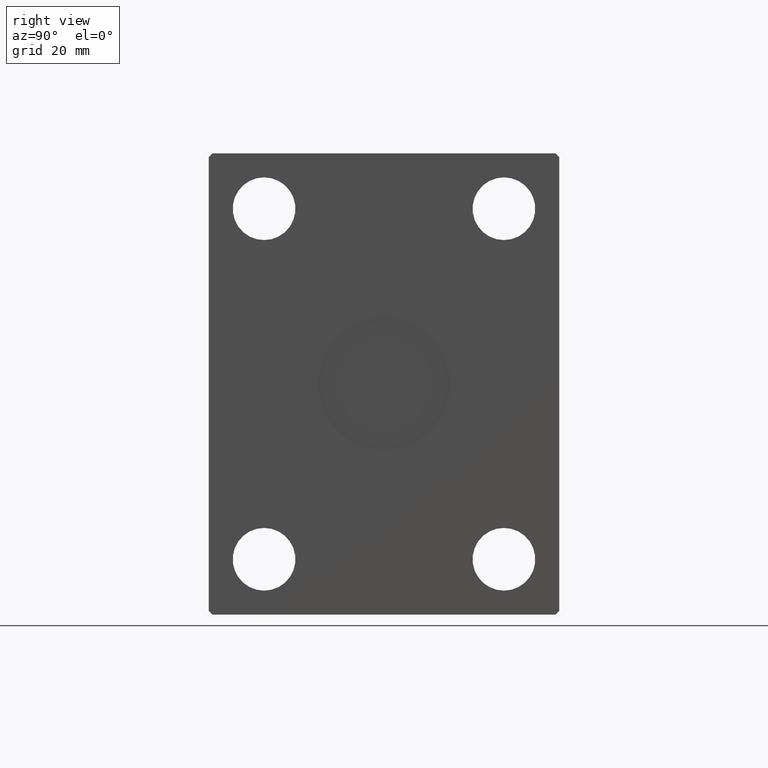
[diagram: clean part render]
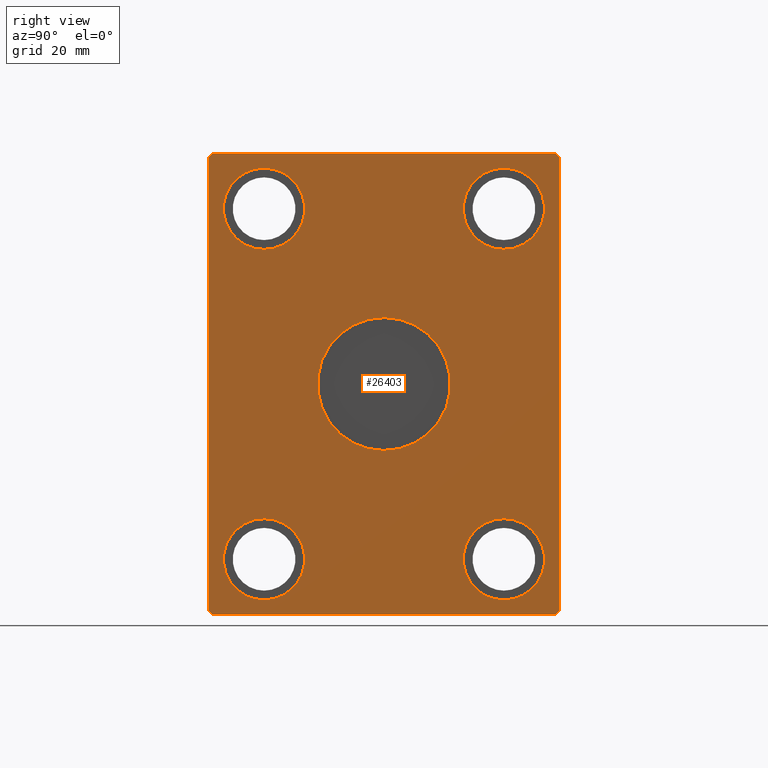
[diagram: same view with one face highlighted and labeled with its STEP entity id]
A machine part, right view. The second image highlights one B-rep face of the part: STEP entity #26403.
In plain terms, the highlighted planar face has unit normal (1, 0, 0).
Its self-contained STEP definition (entity closure, byte-faithful):
#306 = ORIENTED_EDGE ( 'NONE', *, *, #28182, .T. ) ;
#836 = VERTEX_POINT ( 'NONE', #36995 ) ;
#1132 = ORIENTED_EDGE ( 'NONE', *, *, #11264, .F. ) ;
#1316 = VERTEX_POINT ( 'NONE', #36210 ) ;
#1847 = CARTESIAN_POINT ( 'NONE',  ( 121.0000000000000000, 2.204364238465235428E-15, 18.00000000000000000 ) ) ;
#1907 = ORIENTED_EDGE ( 'NONE', *, *, #36774, .T. ) ;
#2006 = CARTESIAN_POINT ( 'NONE',  ( 121.0000000000000000, -32.50000000000000000, 47.50000000000000000 ) ) ;
#2541 = DIRECTION ( 'NONE',  ( 0.000000000000000000, -1.128275431529630729E-16, 1.000000000000000000 ) ) ;
#2580 = DIRECTION ( 'NONE',  ( -1.000000000000000000, -0.000000000000000000, -0.000000000000000000 ) ) ;
#2722 = DIRECTION ( 'NONE',  ( 0.000000000000000000, 0.7071067811865451302, -0.7071067811865500152 ) ) ;
#2756 = DIRECTION ( 'NONE',  ( 0.000000000000000000, 0.000000000000000000, -1.000000000000000000 ) ) ;
#3048 = ORIENTED_EDGE ( 'NONE', *, *, #8466, .F. ) ;
#3090 = VECTOR ( 'NONE', #2722, 1000.000000000000114 ) ;
#3350 = DIRECTION ( 'NONE',  ( 0.000000000000000000, 0.000000000000000000, 1.000000000000000000 ) ) ;
#4679 = CARTESIAN_POINT ( 'NONE',  ( 121.0000000000000000, -32.50000000000000000, -58.50000000000000000 ) ) ;
#5449 = CARTESIAN_POINT ( 'NONE',  ( 121.0000000000000000, 47.50000000000000000, 61.49999999999998579 ) ) ;
#5454 = CARTESIAN_POINT ( 'NONE',  ( 121.0000000000000000, 0.000000000000000000, 0.000000000000000000 ) ) ;
#5467 = CARTESIAN_POINT ( 'NONE',  ( 121.0000000000000000, -47.50000000000001421, 61.49999999999997868 ) ) ;
#5486 = LINE ( 'NONE', #41792, #32339 ) ;
#5543 = AXIS2_PLACEMENT_3D ( 'NONE', #15691, #18491, #5595 ) ;
#5580 = DIRECTION ( 'NONE',  ( 0.000000000000000000, -0.7071067811865474617, -0.7071067811865474617 ) ) ;
#5595 = DIRECTION ( 'NONE',  ( 0.000000000000000000, 0.000000000000000000, -1.000000000000000000 ) ) ;
#5781 = AXIS2_PLACEMENT_3D ( 'NONE', #24853, #34323, #37973 ) ;
#5985 = CARTESIAN_POINT ( 'NONE',  ( 121.0000000000000000, -32.50000000000000000, -47.50000000000000000 ) ) ;
#6036 = EDGE_CURVE ( 'NONE', #18172, #38345, #16438, .T. ) ;
#6117 = EDGE_CURVE ( 'NONE', #29821, #37605, #15053, .T. ) ;
#6122 = CARTESIAN_POINT ( 'NONE',  ( 121.0000000000000000, 0.000000000000000000, 0.000000000000000000 ) ) ;
#6146 = CARTESIAN_POINT ( 'NONE',  ( 121.0000000000000000, -32.50000000000000000, 58.50000000000000000 ) ) ;
#6468 = CIRCLE ( 'NONE', #5781, 10.99999999999999645 ) ;
#6503 = AXIS2_PLACEMENT_3D ( 'NONE', #6122, #22040, #18810 ) ;
#6583 = LINE ( 'NONE', #13873, #21324 ) ;
#6617 = CARTESIAN_POINT ( 'NONE',  ( 121.0000000000000000, 46.50000000000000000, -62.50000000000000000 ) ) ;
#6934 = AXIS2_PLACEMENT_3D ( 'NONE', #2006, #40463, #27788 ) ;
#7363 = ORIENTED_EDGE ( 'NONE', *, *, #10427, .F. ) ;
#7569 = CIRCLE ( 'NONE', #11686, 18.00000000000000000 ) ;
#7587 = EDGE_LOOP ( 'NONE', ( #27424, #3048 ) ) ;
#7900 = ORIENTED_EDGE ( 'NONE', *, *, #40600, .T. ) ;
#8466 = EDGE_CURVE ( 'NONE', #37605, #29821, #7569, .T. ) ;
#8470 = EDGE_CURVE ( 'NONE', #38345, #18172, #19930, .T. ) ;
#8660 = CARTESIAN_POINT ( 'NONE',  ( 121.0000000000000000, -46.50000000000000000, -62.50000000000001421 ) ) ;
#8811 = DIRECTION ( 'NONE',  ( 1.000000000000000000, 0.000000000000000000, 0.000000000000000000 ) ) ;
#8941 = ORIENTED_EDGE ( 'NONE', *, *, #19124, .T. ) ;
#9022 = DIRECTION ( 'NONE',  ( 0.000000000000000000, 0.000000000000000000, -1.000000000000000000 ) ) ;
#9288 = EDGE_CURVE ( 'NONE', #39195, #11063, #33673, .T. ) ;
#9315 = DIRECTION ( 'NONE',  ( 0.000000000000000000, 0.000000000000000000, -1.000000000000000000 ) ) ;
#9585 = CARTESIAN_POINT ( 'NONE',  ( 121.0000000000000000, -47.49999999999999289, -61.50000000000001421 ) ) ;
#10427 = EDGE_CURVE ( 'NONE', #40891, #18330, #39190, .T. ) ;
#10543 = CARTESIAN_POINT ( 'NONE',  ( 121.0000000000000000, 32.50000000000000000, -58.50000000000000000 ) ) ;
#11063 = VERTEX_POINT ( 'NONE', #27929 ) ;
#11264 = EDGE_CURVE ( 'NONE', #11063, #39195, #40569, .T. ) ;
#11679 = EDGE_LOOP ( 'NONE', ( #24960, #32295 ) ) ;
#11686 = AXIS2_PLACEMENT_3D ( 'NONE', #22354, #8811, #9022 ) ;
#11695 = DIRECTION ( 'NONE',  ( -1.000000000000000000, -0.000000000000000000, -0.000000000000000000 ) ) ;
#12145 = FACE_BOUND ( 'NONE', #11679, .T. ) ;
#12672 = LINE ( 'NONE', #25771, #14118 ) ;
#13524 = VERTEX_POINT ( 'NONE', #21697 ) ;
#13873 = CARTESIAN_POINT ( 'NONE',  ( 121.0000000000000000, 46.50000000000000000, -62.50000000000000000 ) ) ;
#14118 = VECTOR ( 'NONE', #5580, 1000.000000000000114 ) ;
#14191 = ORIENTED_EDGE ( 'NONE', *, *, #37947, .T. ) ;
#14440 = AXIS2_PLACEMENT_3D ( 'NONE', #28577, #2580, #41474 ) ;
#14632 = VERTEX_POINT ( 'NONE', #5467 ) ;
#15053 = CIRCLE ( 'NONE', #38398, 18.00000000000000000 ) ;
#15334 = DIRECTION ( 'NONE',  ( 0.000000000000000000, 1.692413147294445970E-16, -1.000000000000000000 ) ) ;
#15581 = FACE_BOUND ( 'NONE', #7587, .T. ) ;
#15691 = CARTESIAN_POINT ( 'NONE',  ( 121.0000000000000000, 32.50000000000000000, 47.50000000000000000 ) ) ;
#16052 = LINE ( 'NONE', #9585, #3090 ) ;
#16438 = CIRCLE ( 'NONE', #40442, 10.99999999999999645 ) ;
#17094 = ORIENTED_EDGE ( 'NONE', *, *, #25661, .T. ) ;
#17231 = AXIS2_PLACEMENT_3D ( 'NONE', #37072, #33440, #33858 ) ;
#18172 = VERTEX_POINT ( 'NONE', #10543 ) ;
#18184 = LINE ( 'NONE', #18390, #34364 ) ;
#18330 = VERTEX_POINT ( 'NONE', #4679 ) ;
#18385 = DIRECTION ( 'NONE',  ( 0.000000000000000000, -1.000000000000000000, -7.461176240760460157E-17 ) ) ;
#18390 = CARTESIAN_POINT ( 'NONE',  ( 121.0000000000000000, 47.50000000000000000, 61.49999999999998579 ) ) ;
#18491 = DIRECTION ( 'NONE',  ( 1.000000000000000000, -0.000000000000000000, -0.000000000000000000 ) ) ;
#18563 = CARTESIAN_POINT ( 'NONE',  ( 121.0000000000000000, -47.50000000000001421, 61.49999999999997868 ) ) ;
#18600 = FACE_BOUND ( 'NONE', #41514, .T. ) ;
#18810 = DIRECTION ( 'NONE',  ( 0.000000000000000000, 0.000000000000000000, -1.000000000000000000 ) ) ;
#19090 = DIRECTION ( 'NONE',  ( 1.000000000000000000, -0.000000000000000000, -0.000000000000000000 ) ) ;
#19124 = EDGE_CURVE ( 'NONE', #13524, #28707, #31440, .T. ) ;
#19930 = CIRCLE ( 'NONE', #14440, 10.99999999999999645 ) ;
#20159 = CARTESIAN_POINT ( 'NONE',  ( 121.0000000000000000, 32.50000000000000000, 58.50000000000000000 ) ) ;
#20341 = CARTESIAN_POINT ( 'NONE',  ( 121.0000000000000000, -32.50000000000000000, -36.50000000000000711 ) ) ;
#20606 = VECTOR ( 'NONE', #2541, 1000.000000000000000 ) ;
#20995 = EDGE_LOOP ( 'NONE', ( #33682, #7363 ) ) ;
#21324 = VECTOR ( 'NONE', #40086, 999.9999999999998863 ) ;
#21675 = LINE ( 'NONE', #31983, #20606 ) ;
#21697 = CARTESIAN_POINT ( 'NONE',  ( 121.0000000000000000, -46.50000000000000000, -62.50000000000001421 ) ) ;
#21775 = DIRECTION ( 'NONE',  ( 0.000000000000000000, 1.000000000000000000, 1.492235248152092278E-16 ) ) ;
#22040 = DIRECTION ( 'NONE',  ( 1.000000000000000000, 0.000000000000000000, 0.000000000000000000 ) ) ;
#22354 = CARTESIAN_POINT ( 'NONE',  ( 121.0000000000000000, 0.000000000000000000, 0.000000000000000000 ) ) ;
#24105 = AXIS2_PLACEMENT_3D ( 'NONE', #5985, #19090, #2756 ) ;
#24162 = DIRECTION ( 'NONE',  ( 0.000000000000000000, 0.000000000000000000, 1.000000000000000000 ) ) ;
#24553 = ORIENTED_EDGE ( 'NONE', *, *, #28766, .T. ) ;
#24747 = EDGE_CURVE ( 'NONE', #18330, #40891, #6468, .T. ) ;
#24853 = CARTESIAN_POINT ( 'NONE',  ( 121.0000000000000000, -32.50000000000000000, -47.50000000000000000 ) ) ;
#24959 = ORIENTED_EDGE ( 'NONE', *, *, #42317, .T. ) ;
#24960 = ORIENTED_EDGE ( 'NONE', *, *, #6036, .T. ) ;
#25134 = CARTESIAN_POINT ( 'NONE',  ( 121.0000000000000000, 47.50000000000001421, -61.50000000000001421 ) ) ;
#25604 = EDGE_CURVE ( 'NONE', #836, #13524, #16052, .T. ) ;
#25661 = EDGE_CURVE ( 'NONE', #35521, #31753, #33944, .T. ) ;
#25771 = CARTESIAN_POINT ( 'NONE',  ( 121.0000000000000000, -46.50000000000001421, 62.49999999999997868 ) ) ;
#25885 = PLANE ( 'NONE',  #6503 ) ;
#26403 = ADVANCED_FACE ( 'NONE', ( #15581, #29323, #12145, #28682, #32131, #18600 ), #25885, .T. ) ;
#26890 = CARTESIAN_POINT ( 'NONE',  ( 121.0000000000000000, 0.000000000000000000, -18.00000000000000000 ) ) ;
#27365 = CARTESIAN_POINT ( 'NONE',  ( 121.0000000000000000, 46.50000000000000000, 62.49999999999998579 ) ) ;
#27424 = ORIENTED_EDGE ( 'NONE', *, *, #6117, .F. ) ;
#27788 = DIRECTION ( 'NONE',  ( 0.000000000000000000, 0.000000000000000000, 1.000000000000000000 ) ) ;
#27929 = CARTESIAN_POINT ( 'NONE',  ( 121.0000000000000000, 32.50000000000000000, 36.50000000000000711 ) ) ;
#28070 = VERTEX_POINT ( 'NONE', #27365 ) ;
#28182 = EDGE_CURVE ( 'NONE', #14632, #836, #31679, .T. ) ;
#28577 = CARTESIAN_POINT ( 'NONE',  ( 121.0000000000000000, 32.50000000000000000, -47.50000000000000000 ) ) ;
#28682 = FACE_OUTER_BOUND ( 'NONE', #31428, .T. ) ;
#28707 = VERTEX_POINT ( 'NONE', #6617 ) ;
#28766 = EDGE_CURVE ( 'NONE', #1316, #14632, #12672, .T. ) ;
#28859 = EDGE_LOOP ( 'NONE', ( #14191, #17094 ) ) ;
#29221 = CARTESIAN_POINT ( 'NONE',  ( 121.0000000000000000, 32.50000000000000000, -36.50000000000000711 ) ) ;
#29323 = FACE_BOUND ( 'NONE', #28859, .T. ) ;
#29821 = VERTEX_POINT ( 'NONE', #26890 ) ;
#31205 = VERTEX_POINT ( 'NONE', #5449 ) ;
#31428 = EDGE_LOOP ( 'NONE', ( #40693, #24959, #24553, #306, #36188, #8941, #1907, #7900 ) ) ;
#31440 = LINE ( 'NONE', #8660, #38030 ) ;
#31679 = LINE ( 'NONE', #18563, #33981 ) ;
#31753 = VERTEX_POINT ( 'NONE', #32380 ) ;
#31983 = CARTESIAN_POINT ( 'NONE',  ( 121.0000000000000000, 47.50000000000001421, -61.50000000000001421 ) ) ;
#32131 = FACE_BOUND ( 'NONE', #20995, .T. ) ;
#32295 = ORIENTED_EDGE ( 'NONE', *, *, #8470, .T. ) ;
#32339 = VECTOR ( 'NONE', #18385, 1000.000000000000000 ) ;
#32380 = CARTESIAN_POINT ( 'NONE',  ( 121.0000000000000000, -32.50000000000000000, 36.50000000000000711 ) ) ;
#32920 = CIRCLE ( 'NONE', #6934, 10.99999999999999645 ) ;
#33440 = DIRECTION ( 'NONE',  ( 1.000000000000000000, -0.000000000000000000, -0.000000000000000000 ) ) ;
#33673 = CIRCLE ( 'NONE', #5543, 10.99999999999999645 ) ;
#33682 = ORIENTED_EDGE ( 'NONE', *, *, #24747, .F. ) ;
#33858 = DIRECTION ( 'NONE',  ( 0.000000000000000000, 0.000000000000000000, -1.000000000000000000 ) ) ;
#33944 = CIRCLE ( 'NONE', #38086, 10.99999999999999645 ) ;
#33981 = VECTOR ( 'NONE', #15334, 1000.000000000000000 ) ;
#34323 = DIRECTION ( 'NONE',  ( 1.000000000000000000, -0.000000000000000000, -0.000000000000000000 ) ) ;
#34364 = VECTOR ( 'NONE', #41379, 1000.000000000000114 ) ;
#35521 = VERTEX_POINT ( 'NONE', #6146 ) ;
#36025 = DIRECTION ( 'NONE',  ( -1.000000000000000000, -0.000000000000000000, -0.000000000000000000 ) ) ;
#36188 = ORIENTED_EDGE ( 'NONE', *, *, #25604, .T. ) ;
#36210 = CARTESIAN_POINT ( 'NONE',  ( 121.0000000000000000, -46.50000000000001421, 62.49999999999997868 ) ) ;
#36774 = EDGE_CURVE ( 'NONE', #28707, #39540, #6583, .T. ) ;
#36995 = CARTESIAN_POINT ( 'NONE',  ( 121.0000000000000000, -47.49999999999999289, -61.50000000000001421 ) ) ;
#37072 = CARTESIAN_POINT ( 'NONE',  ( 121.0000000000000000, 32.50000000000000000, 47.50000000000000000 ) ) ;
#37489 = CARTESIAN_POINT ( 'NONE',  ( 121.0000000000000000, 32.50000000000000000, -47.50000000000000000 ) ) ;
#37605 = VERTEX_POINT ( 'NONE', #1847 ) ;
#37947 = EDGE_CURVE ( 'NONE', #31753, #35521, #32920, .T. ) ;
#37973 = DIRECTION ( 'NONE',  ( 0.000000000000000000, 0.000000000000000000, -1.000000000000000000 ) ) ;
#38030 = VECTOR ( 'NONE', #21775, 1000.000000000000000 ) ;
#38086 = AXIS2_PLACEMENT_3D ( 'NONE', #38824, #36025, #3350 ) ;
#38327 = DIRECTION ( 'NONE',  ( 1.000000000000000000, 0.000000000000000000, 0.000000000000000000 ) ) ;
#38345 = VERTEX_POINT ( 'NONE', #29221 ) ;
#38398 = AXIS2_PLACEMENT_3D ( 'NONE', #5454, #38327, #9315 ) ;
#38824 = CARTESIAN_POINT ( 'NONE',  ( 121.0000000000000000, -32.50000000000000000, 47.50000000000000000 ) ) ;
#39190 = CIRCLE ( 'NONE', #24105, 10.99999999999999645 ) ;
#39195 = VERTEX_POINT ( 'NONE', #20159 ) ;
#39540 = VERTEX_POINT ( 'NONE', #25134 ) ;
#39605 = ORIENTED_EDGE ( 'NONE', *, *, #9288, .F. ) ;
#40086 = DIRECTION ( 'NONE',  ( 0.000000000000000000, 0.7071067811865574537, 0.7071067811865376918 ) ) ;
#40442 = AXIS2_PLACEMENT_3D ( 'NONE', #37489, #11695, #24162 ) ;
#40463 = DIRECTION ( 'NONE',  ( -1.000000000000000000, -0.000000000000000000, -0.000000000000000000 ) ) ;
#40569 = CIRCLE ( 'NONE', #17231, 10.99999999999999645 ) ;
#40600 = EDGE_CURVE ( 'NONE', #39540, #31205, #21675, .T. ) ;
#40693 = ORIENTED_EDGE ( 'NONE', *, *, #40957, .T. ) ;
#40891 = VERTEX_POINT ( 'NONE', #20341 ) ;
#40957 = EDGE_CURVE ( 'NONE', #31205, #28070, #18184, .T. ) ;
#41379 = DIRECTION ( 'NONE',  ( 0.000000000000000000, -0.7071067811865474617, 0.7071067811865474617 ) ) ;
#41474 = DIRECTION ( 'NONE',  ( 0.000000000000000000, 0.000000000000000000, 1.000000000000000000 ) ) ;
#41514 = EDGE_LOOP ( 'NONE', ( #1132, #39605 ) ) ;
#41792 = CARTESIAN_POINT ( 'NONE',  ( 121.0000000000000000, 46.50000000000000000, 62.49999999999998579 ) ) ;
#42317 = EDGE_CURVE ( 'NONE', #28070, #1316, #5486, .T. ) ;